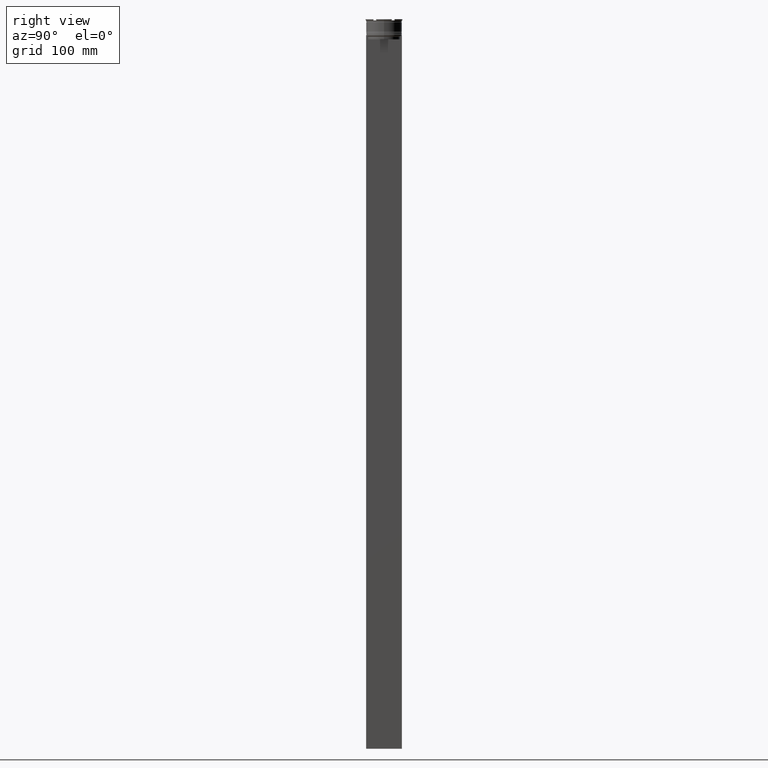
[diagram: clean part render]
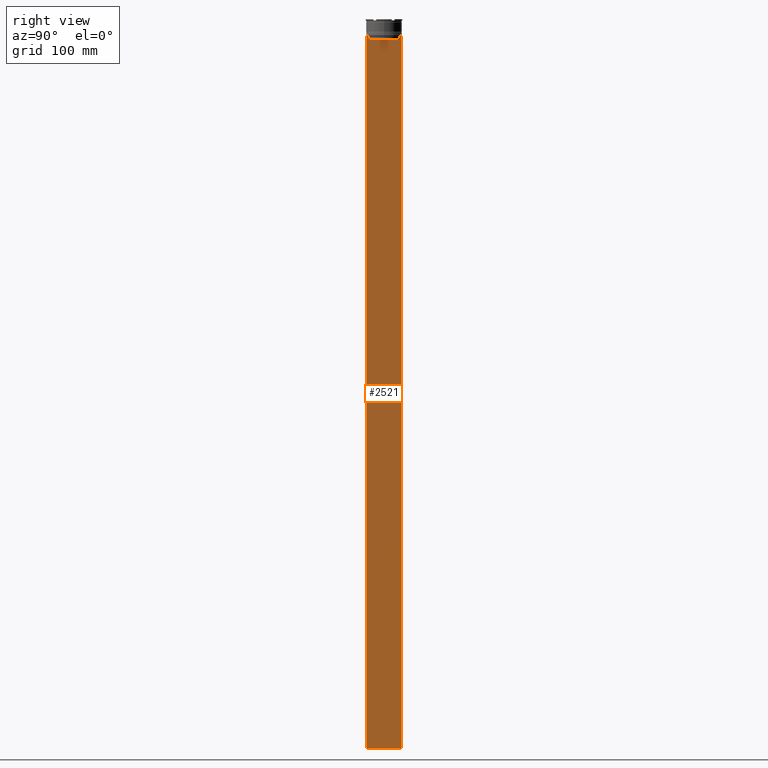
[diagram: same view with one face highlighted and labeled with its STEP entity id]
A machine part, right view. The second image highlights one B-rep face of the part: STEP entity #2521.
In plain terms, the highlighted planar face has unit normal (-1, 0, 0).
Its self-contained STEP definition (entity closure, byte-faithful):
#25 = VECTOR ( 'NONE', #82, 1000.000000000000000 ) ;
#39 = DIRECTION ( 'NONE',  ( 0.000000000000000000, 1.000000000000000000, 0.000000000000000000 ) ) ;
#78 = VECTOR ( 'NONE', #1614, 1000.000000000000000 ) ;
#82 = DIRECTION ( 'NONE',  ( 0.000000000000000000, -1.000000000000000000, 0.000000000000000000 ) ) ;
#102 = VERTEX_POINT ( 'NONE', #2275 ) ;
#113 = CARTESIAN_POINT ( 'NONE',  ( 0.5000000000000001110, 14.99999999999999645, 16.01666203960726165 ) ) ;
#151 = DIRECTION ( 'NONE',  ( -1.000000000000000000, 0.000000000000000000, 0.000000000000000000 ) ) ;
#155 = CARTESIAN_POINT ( 'NONE',  ( 0.5000000000000001110, 13.40000000000000391, -17.00000000000000000 ) ) ;
#188 = VERTEX_POINT ( 'NONE', #2447 ) ;
#197 = ORIENTED_EDGE ( 'NONE', *, *, #924, .T. ) ;
#218 = DIRECTION ( 'NONE',  ( -0.000000000000000000, -0.000000000000000000, 1.000000000000000000 ) ) ;
#223 = CARTESIAN_POINT ( 'NONE',  ( 0.5000000000000001110, -13.39066839257847263, -14.49999999999999822 ) ) ;
#261 = VERTEX_POINT ( 'NONE', #405 ) ;
#269 = VECTOR ( 'NONE', #1611, 1000.000000000000000 ) ;
#277 = B_SPLINE_CURVE_WITH_KNOTS ( 'NONE', 3,
 ( #997, #1901, #299, #767 ),
 .UNSPECIFIED., .F., .F.,
 ( 4, 4 ),
 ( 0.02359665025569774102, 0.02430399458637444096 ),
 .UNSPECIFIED. ) ;
#299 = CARTESIAN_POINT ( 'NONE',  ( 0.5000000000000001110, 13.55744911232272543, -14.33333542444994002 ) ) ;
#343 = CARTESIAN_POINT ( 'NONE',  ( 0.5000000000000001110, -15.00000000000000355, -14.00000000000000178 ) ) ;
#383 = VECTOR ( 'NONE', #1759, 1000.000000000000000 ) ;
#405 = CARTESIAN_POINT ( 'NONE',  ( 0.5000000000000001110, -14.89160837518903513, -14.00000000000000178 ) ) ;
#422 = B_SPLINE_CURVE_WITH_KNOTS ( 'NONE', 3,
 ( #1039, #1934, #1957, #2853 ),
 .UNSPECIFIED., .F., .F.,
 ( 4, 4 ),
 ( 0.06160226316123722928, 0.06231007364084064498 ),
 .UNSPECIFIED. ) ;
#462 = EDGE_CURVE ( 'NONE', #102, #2490, #515, .T. ) ;
#466 = ORIENTED_EDGE ( 'NONE', *, *, #2393, .T. ) ;
#503 = CARTESIAN_POINT ( 'NONE',  ( 0.5000000000000001110, 14.99999999999999645, -14.00000000000000178 ) ) ;
#510 = LINE ( 'NONE', #1834, #78 ) ;
#515 = LINE ( 'NONE', #2030, #683 ) ;
#529 = DIRECTION ( 'NONE',  ( 0.000000000000000000, 0.000000000000000000, -1.000000000000000000 ) ) ;
#578 = CARTESIAN_POINT ( 'NONE',  ( 0.5000000000000001110, 14.99999999999999645, -614.0000000000000000 ) ) ;
#607 = VERTEX_POINT ( 'NONE', #1674 ) ;
#617 = ORIENTED_EDGE ( 'NONE', *, *, #1553, .T. ) ;
#683 = VECTOR ( 'NONE', #39, 1000.000000000000000 ) ;
#720 = VECTOR ( 'NONE', #529, 1000.000000000000000 ) ;
#767 = CARTESIAN_POINT ( 'NONE',  ( 0.5000000000000001110, 13.39066839257847263, -14.49999999999999822 ) ) ;
#856 = ORIENTED_EDGE ( 'NONE', *, *, #1043, .T. ) ;
#859 = DIRECTION ( 'NONE',  ( 0.000000000000000000, -1.000000000000000000, 0.000000000000000000 ) ) ;
#905 = VECTOR ( 'NONE', #1522, 1000.000000000000000 ) ;
#924 = EDGE_CURVE ( 'NONE', #1129, #1442, #510, .T. ) ;
#983 = EDGE_CURVE ( 'NONE', #607, #102, #2152, .T. ) ;
#997 = CARTESIAN_POINT ( 'NONE',  ( 0.5000000000000001110, 13.89100428334828230, -14.00000000000000178 ) ) ;
#1019 = CARTESIAN_POINT ( 'NONE',  ( 0.5000000000000001110, -13.39066839257847086, -17.00000000000000000 ) ) ;
#1039 = CARTESIAN_POINT ( 'NONE',  ( 0.5000000000000001110, -13.39066839257847263, -14.49999999999999822 ) ) ;
#1043 = EDGE_CURVE ( 'NONE', #1161, #2430, #422, .T. ) ;
#1057 = CARTESIAN_POINT ( 'NONE',  ( 0.5000000000000001110, -15.00000000000000355, 16.01666203960726165 ) ) ;
#1067 = CARTESIAN_POINT ( 'NONE',  ( 0.5000000000000001110, 14.89160837518903513, -14.00000000000000178 ) ) ;
#1129 = VERTEX_POINT ( 'NONE', #503 ) ;
#1161 = VERTEX_POINT ( 'NONE', #223 ) ;
#1167 = LINE ( 'NONE', #1403, #25 ) ;
#1176 = VERTEX_POINT ( 'NONE', #2706 ) ;
#1183 = VECTOR ( 'NONE', #1675, 1000.000000000000000 ) ;
#1281 = VECTOR ( 'NONE', #859, 1000.000000000000000 ) ;
#1294 = LINE ( 'NONE', #155, #1281 ) ;
#1403 = CARTESIAN_POINT ( 'NONE',  ( 0.5000000000000001110, -15.00000000000000355, -14.00000000000000178 ) ) ;
#1442 = VERTEX_POINT ( 'NONE', #1067 ) ;
#1444 = CARTESIAN_POINT ( 'NONE',  ( 0.5000000000000001110, -13.89100428334828230, -14.00000000000000178 ) ) ;
#1446 = CARTESIAN_POINT ( 'NONE',  ( 0.5000000000000001110, 13.39066839257847263, -14.49999999999999822 ) ) ;
#1469 = ORIENTED_EDGE ( 'NONE', *, *, #2852, .T. ) ;
#1483 = DIRECTION ( 'NONE',  ( 0.000000000000000000, 0.000000000000000000, 1.000000000000000000 ) ) ;
#1496 = PLANE ( 'NONE',  #2858 ) ;
#1522 = DIRECTION ( 'NONE',  ( 0.000000000000000000, 0.000000000000000000, -1.000000000000000000 ) ) ;
#1526 = EDGE_CURVE ( 'NONE', #2430, #261, #1772, .T. ) ;
#1536 = ORIENTED_EDGE ( 'NONE', *, *, #1989, .T. ) ;
#1553 = EDGE_CURVE ( 'NONE', #1821, #1161, #2688, .T. ) ;
#1611 = DIRECTION ( 'NONE',  ( 0.000000000000000000, -1.000000000000000000, 0.000000000000000000 ) ) ;
#1614 = DIRECTION ( 'NONE',  ( 0.000000000000000000, -1.000000000000000000, 0.000000000000000000 ) ) ;
#1674 = CARTESIAN_POINT ( 'NONE',  ( 0.5000000000000001110, -15.00000000000000355, -14.00000000000000178 ) ) ;
#1675 = DIRECTION ( 'NONE',  ( 0.000000000000000000, 0.000000000000000000, -1.000000000000000000 ) ) ;
#1759 = DIRECTION ( 'NONE',  ( 0.000000000000000000, -1.000000000000000000, 0.000000000000000000 ) ) ;
#1772 = LINE ( 'NONE', #2222, #383 ) ;
#1807 = VERTEX_POINT ( 'NONE', #1446 ) ;
#1821 = VERTEX_POINT ( 'NONE', #1019 ) ;
#1834 = CARTESIAN_POINT ( 'NONE',  ( 0.5000000000000001110, -15.00000000000000355, -14.00000000000000178 ) ) ;
#1869 = LINE ( 'NONE', #2781, #720 ) ;
#1901 = CARTESIAN_POINT ( 'NONE',  ( 0.5000000000000001110, 13.72422766736833744, -14.16666868251365052 ) ) ;
#1902 = ORIENTED_EDGE ( 'NONE', *, *, #2106, .T. ) ;
#1920 = EDGE_CURVE ( 'NONE', #1129, #2490, #2093, .T. ) ;
#1922 = FACE_OUTER_BOUND ( 'NONE', #2600, .T. ) ;
#1934 = CARTESIAN_POINT ( 'NONE',  ( 0.5000000000000001110, -13.55744911241550099, -14.33333542435722663 ) ) ;
#1942 = VECTOR ( 'NONE', #218, 1000.000000000000000 ) ;
#1957 = CARTESIAN_POINT ( 'NONE',  ( 0.5000000000000001110, -13.72422766745777167, -14.16666868242427135 ) ) ;
#1963 = EDGE_CURVE ( 'NONE', #1176, #1807, #277, .T. ) ;
#1989 = EDGE_CURVE ( 'NONE', #1807, #188, #1869, .T. ) ;
#2030 = CARTESIAN_POINT ( 'NONE',  ( 0.5000000000000001110, -15.00000000000000355, -614.0000000000000000 ) ) ;
#2093 = LINE ( 'NONE', #113, #1183 ) ;
#2106 = EDGE_CURVE ( 'NONE', #188, #1821, #1294, .T. ) ;
#2144 = CARTESIAN_POINT ( 'NONE',  ( 0.5000000000000001110, -15.00000000000000355, 16.01666203960726165 ) ) ;
#2152 = LINE ( 'NONE', #1057, #905 ) ;
#2222 = CARTESIAN_POINT ( 'NONE',  ( 0.5000000000000001110, -15.00000000000000355, -14.00000000000000178 ) ) ;
#2275 = CARTESIAN_POINT ( 'NONE',  ( 0.5000000000000001110, -15.00000000000000355, -614.0000000000000000 ) ) ;
#2276 = LINE ( 'NONE', #343, #269 ) ;
#2371 = ORIENTED_EDGE ( 'NONE', *, *, #1920, .F. ) ;
#2393 = EDGE_CURVE ( 'NONE', #261, #607, #1167, .T. ) ;
#2430 = VERTEX_POINT ( 'NONE', #1444 ) ;
#2436 = CARTESIAN_POINT ( 'NONE',  ( 0.5000000000000001110, -13.39066839257847263, 0.000000000000000000 ) ) ;
#2447 = CARTESIAN_POINT ( 'NONE',  ( 0.5000000000000001110, 13.39066839257847086, -17.00000000000000000 ) ) ;
#2490 = VERTEX_POINT ( 'NONE', #578 ) ;
#2521 = ADVANCED_FACE ( 'NONE', ( #1922 ), #1496, .F. ) ;
#2575 = ORIENTED_EDGE ( 'NONE', *, *, #462, .T. ) ;
#2600 = EDGE_LOOP ( 'NONE', ( #1469, #2606, #1536, #1902, #617, #856, #2673, #466, #2654, #2575, #2371, #197 ) ) ;
#2606 = ORIENTED_EDGE ( 'NONE', *, *, #1963, .T. ) ;
#2654 = ORIENTED_EDGE ( 'NONE', *, *, #983, .T. ) ;
#2673 = ORIENTED_EDGE ( 'NONE', *, *, #1526, .T. ) ;
#2688 = LINE ( 'NONE', #2436, #1942 ) ;
#2706 = CARTESIAN_POINT ( 'NONE',  ( 0.5000000000000001110, 13.89100428334828230, -14.00000000000000178 ) ) ;
#2781 = CARTESIAN_POINT ( 'NONE',  ( 0.5000000000000001110, 13.39066839257847263, 0.000000000000000000 ) ) ;
#2852 = EDGE_CURVE ( 'NONE', #1442, #1176, #2276, .T. ) ;
#2853 = CARTESIAN_POINT ( 'NONE',  ( 0.5000000000000001110, -13.89100428334828230, -14.00000000000000178 ) ) ;
#2858 = AXIS2_PLACEMENT_3D ( 'NONE', #2144, #151, #1483 ) ;